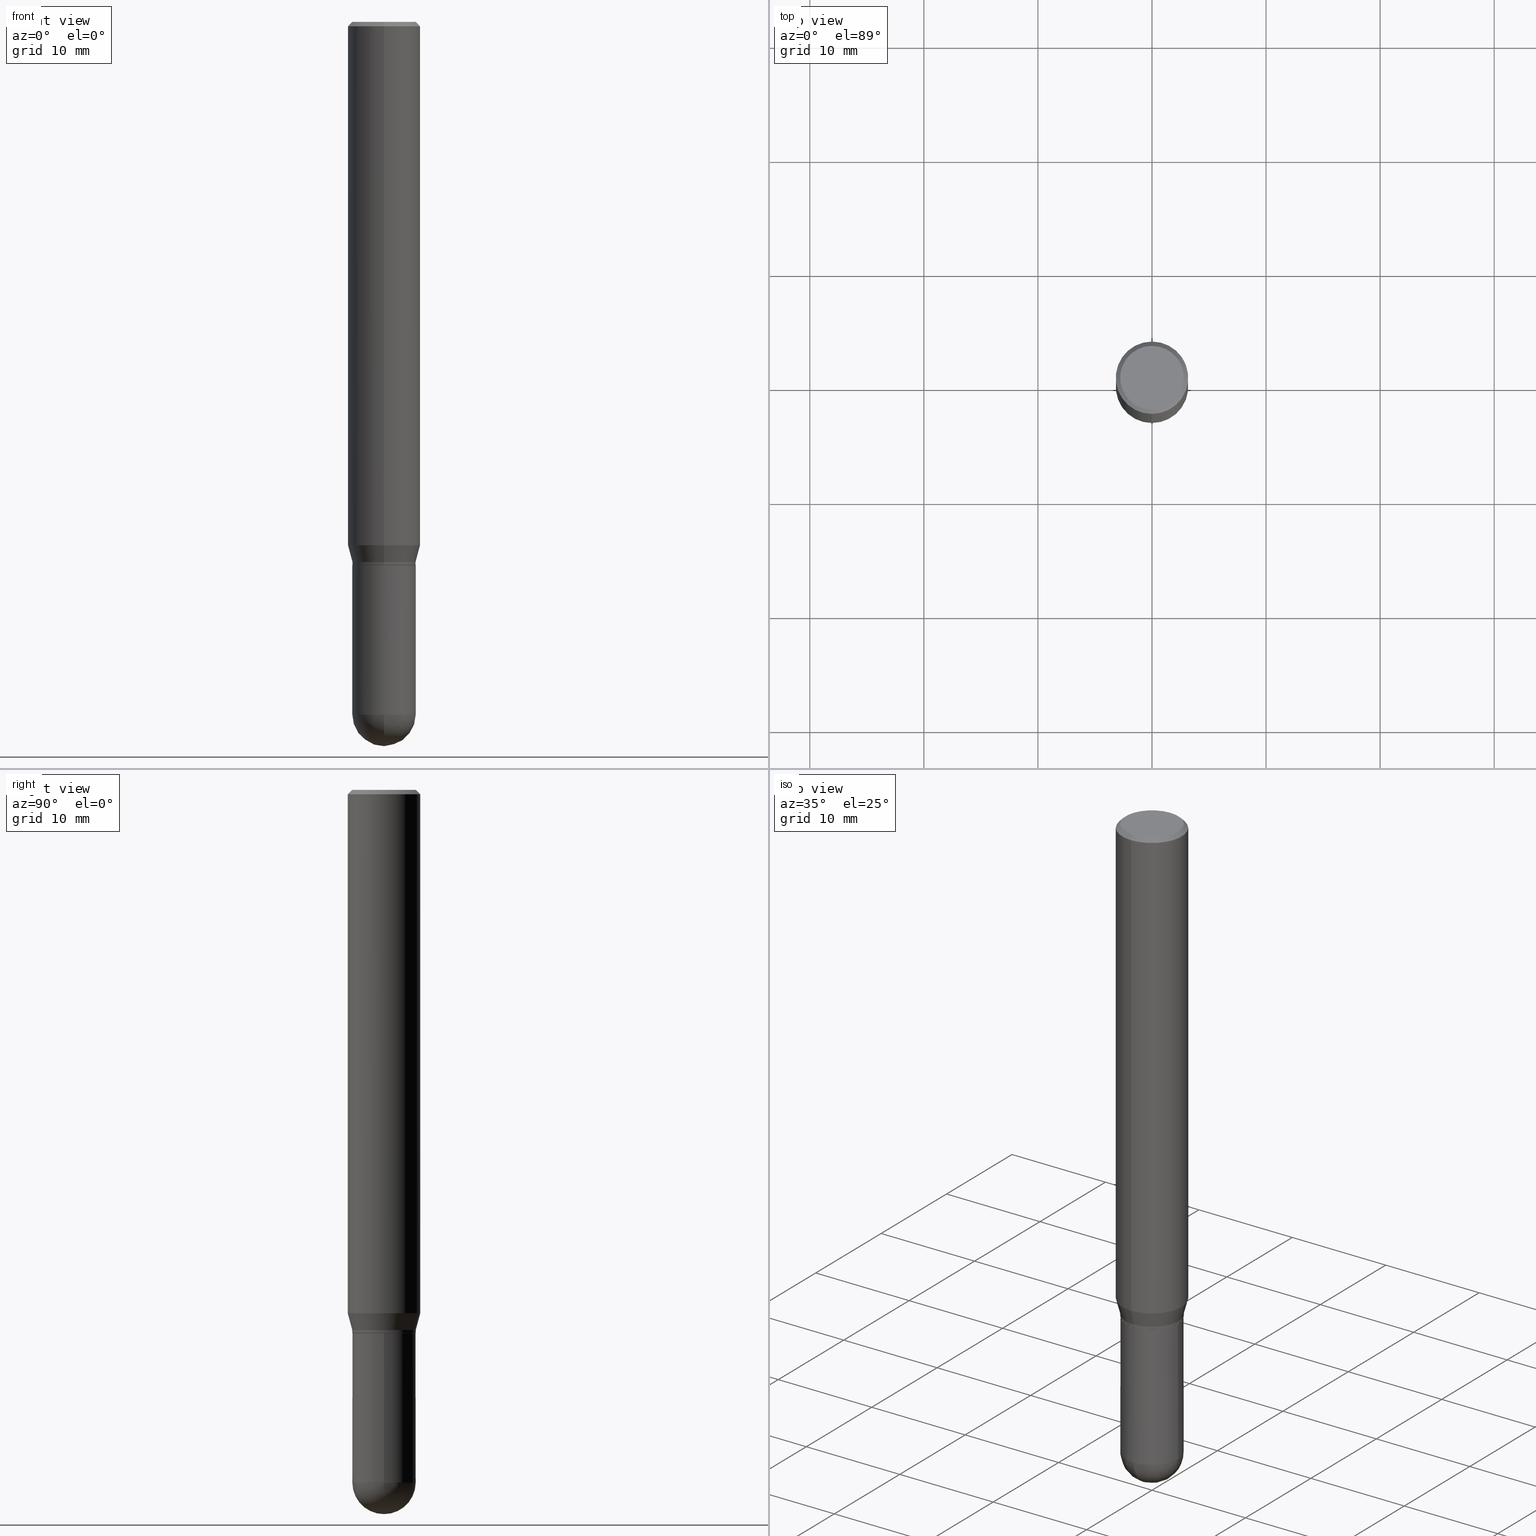
[diagram: canonical four-view strip — front | top / right | iso, engineering-drawing reading convention]
A machine part, canonical four-view strip (front | top / right | iso — engineering-drawing reading convention). The complete STEP part file that produces these views, byte-faithful:
ISO-10303-21;
HEADER;
FILE_DESCRIPTION (( 'STEP AP203' ),
    '1' );
FILE_NAME ('39528.STEP',
    '2024-03-08T12:52:33',
    ( '' ),
    ( '' ),
    'SwSTEP 2.0',
    'SolidWorks 2023',
    '' );
FILE_SCHEMA (( 'CONFIG_CONTROL_DESIGN' ));
ENDSEC;

DATA;
#1 = VECTOR ( 'NONE', #14, 39.37007874015748143 ) ;
#2 =( GEOMETRIC_REPRESENTATION_CONTEXT ( 3 ) GLOBAL_UNCERTAINTY_ASSIGNED_CONTEXT ( ( #114 ) ) GLOBAL_UNIT_ASSIGNED_CONTEXT ( ( #305, #193, #460 ) ) REPRESENTATION_CONTEXT ( 'NONE', 'WORKASPACE' ) );
#3 = DIRECTION ( 'NONE',  ( 1.000000000000000000, -6.982962677686269866E-15, 0.000000000000000000 ) ) ;
#4 = DIRECTION ( 'NONE',  ( -2.445484535067431049E-29, 3.491458814188467583E-15, 1.000000000000000000 ) ) ;
#5 = DIRECTION ( 'NONE',  ( 1.000000000000000000, -6.982962677686266711E-15, 4.876176775795935793E-29 ) ) ;
#6 = CIRCLE ( 'NONE', #500, 0.1093999999999999695 ) ;
#7 = PRODUCT_DEFINITION_FORMATION_WITH_SPECIFIED_SOURCE ( 'ANY', '', #340, .NOT_KNOWN. ) ;
#8 = DIRECTION ( 'NONE',  ( -2.445468806185136597E-29, 3.491481338843145583E-15, 1.000000000000000000 ) ) ;
#9 = CARTESIAN_POINT ( 'NONE',  ( 0.000000000000000000, 0.000000000000000000, 0.000000000000000000 ) ) ;
#10 = LINE ( 'NONE', #303, #449 ) ;
#11 = DIRECTION ( 'NONE',  ( -6.982962677686265922E-15, -1.000000000000000000, 2.497118824190370411E-15 ) ) ;
#12 = DATE_AND_TIME ( #138, #161 ) ;
#13 = EDGE_CURVE ( 'NONE', #119, #242, #272, .T. ) ;
#14 = DIRECTION ( 'NONE',  ( -2.445484535067430768E-29, 3.491458814188467188E-15, 1.000000000000000000 ) ) ;
#15 = VECTOR ( 'NONE', #170, 39.37007874015748143 ) ;
#16 = VECTOR ( 'NONE', #232, 39.37007874015748143 ) ;
#17 = AXIS2_PLACEMENT_3D ( 'NONE', #122, #444, #123 ) ;
#18 = LINE ( 'NONE', #456, #16 ) ;
#19 = CARTESIAN_POINT ( 'NONE',  ( 5.836782208862565620E-29, -8.360132924621096591E-15, -2.390600000000000058 ) ) ;
#20 = ORIENTED_EDGE ( 'NONE', *, *, #78, .F. ) ;
#21 = CALENDAR_DATE ( 2024, 8, 3 ) ;
#22 = CARTESIAN_POINT ( 'NONE',  ( -8.575622497214409523E-16, -0.1250000000000000555, -0.01499999999999956403 ) ) ;
#23 = ORIENTED_EDGE ( 'NONE', *, *, #275, .F. ) ;
#24 = EDGE_LOOP ( 'NONE', ( #301, #394 ) ) ;
#25 = DATE_AND_TIME ( #389, #207 ) ;
#26 = PERSON ( 'UNSPECIFIED', 'UNSPECIFIED', 'UNSPECIFIED', ('UNSPECIFIED'), ('UNSPECIFIED'), ('UNSPECIFIED') ) ;
#27 = CARTESIAN_POINT ( 'NONE',  ( 7.755573960821947898E-16, 0.1088999999999934604, -1.875000000000000444 ) ) ;
#28 = DIRECTION ( 'NONE',  ( -6.982962677686265922E-15, -1.000000000000000000, 3.483106191921935554E-15 ) ) ;
#29 = VERTEX_POINT ( 'NONE', #292 ) ;
#30 = APPROVAL_STATUS ( 'not_yet_approved' ) ;
#31 = CIRCLE ( 'NONE', #370, 0.1093999999999999972 ) ;
#32 = FACE_OUTER_BOUND ( 'NONE', #199, .T. ) ;
#33 = PLANE ( 'NONE',  #353 ) ;
#34 = ORIENTED_EDGE ( 'NONE', *, *, #510, .F. ) ;
#35 = EDGE_LOOP ( 'NONE', ( #117, #347, #512, #465 ) ) ;
#36 = CIRCLE ( 'NONE', #331, 0.1088999999999999968 ) ;
#37 = ADVANCED_FACE ( 'NONE', ( #367 ), #341, .T. ) ;
#38 = VERTEX_POINT ( 'NONE', #287 ) ;
#39 = CARTESIAN_POINT ( 'NONE',  ( 7.639361169389233258E-16, 0.1093999999999934608, -1.875000000000000444 ) ) ;
#40 = SHAPE_DEFINITION_REPRESENTATION ( #256, #409 ) ;
#41 = ADVANCED_FACE ( 'NONE', ( #328 ), #92, .T. ) ;
#42 = CARTESIAN_POINT ( 'NONE',  ( 8.327560863108821759E-16, 0.1093999999999934053, -1.865000000000000213 ) ) ;
#43 = ORIENTED_EDGE ( 'NONE', *, *, #438, .T. ) ;
#44 = EDGE_CURVE ( 'NONE', #470, #237, #181, .T. ) ;
#45 = DIRECTION ( 'NONE',  ( 6.982962677686265922E-15, 1.000000000000000000, -2.497118824190369227E-15 ) ) ;
#46 = CONICAL_SURFACE ( 'NONE', #343, 0.1250000000000000000, 0.7853981633974473908 ) ;
#47 = LINE ( 'NONE', #511, #150 ) ;
#48 = CARTESIAN_POINT ( 'NONE',  ( 4.585283503251433812E-29, -6.546485276603377605E-15, -1.875000000000000000 ) ) ;
#49 = DIRECTION ( 'NONE',  ( -6.982962677686265922E-15, -1.000000000000000000, 4.370956789862821150E-15 ) ) ;
#50 = DIRECTION ( 'NONE',  ( 1.000000000000000000, -6.982962677686265922E-15, 4.883557194083112340E-29 ) ) ;
#51 = CIRCLE ( 'NONE', #120, 0.1093999999999999972 ) ;
#52 = FACE_OUTER_BOUND ( 'NONE', #433, .T. ) ;
#53 = EDGE_CURVE ( 'NONE', #425, #470, #324, .T. ) ;
#54 = MECHANICAL_CONTEXT ( 'NONE', #200, 'mechanical' ) ;
#55 = FACE_OUTER_BOUND ( 'NONE', #210, .T. ) ;
#56 = PERSON_AND_ORGANIZATION ( #26, #288 ) ;
#57 = CC_DESIGN_APPROVAL ( #104, ( #121 ) ) ;
#58 = CARTESIAN_POINT ( 'NONE',  ( 8.881784197001690141E-16, 0.1249999999999936579, -1.806780007401925792 ) ) ;
#59 = EDGE_CURVE ( 'NONE', #508, #113, #47, .T. ) ;
#60 = DIRECTION ( 'NONE',  ( -2.445484535067431049E-29, 3.491458814188467583E-15, 1.000000000000000000 ) ) ;
#61 = LENGTH_MEASURE_WITH_UNIT ( LENGTH_MEASURE( 0.02539999999999999897 ), #87 );
#62 = CARTESIAN_POINT ( 'NONE',  ( 5.846137728066187200E-29, -8.346735288638422607E-15, -2.390600000000000058 ) ) ;
#63 = CARTESIAN_POINT ( 'NONE',  ( 3.668226802601146923E-31, -5.237188221282701522E-17, -0.01499999999999999944 ) ) ;
#64 = ORIENTED_EDGE ( 'NONE', *, *, #306, .T. ) ;
#65 = PERSON_AND_ORGANIZATION ( #26, #288 ) ;
#66 = CARTESIAN_POINT ( 'NONE',  ( 4.585283503251433812E-29, -6.546485276603377605E-15, -1.875000000000000000 ) ) ;
#67 = CARTESIAN_POINT ( 'NONE',  ( -7.604446355999884163E-16, -0.1089000000000065332, -1.874999999999999778 ) ) ;
#68 = ORIENTED_EDGE ( 'NONE', *, *, #13, .F. ) ;
#69 = ADVANCED_FACE ( 'NONE', ( #82 ), #332, .T. ) ;
#70 = ORIENTED_EDGE ( 'NONE', *, *, #91, .T. ) ;
#71 = ORIENTED_EDGE ( 'NONE', *, *, #245, .T. ) ;
#72 = EDGE_LOOP ( 'NONE', ( #112, #188, #20, #368 ) ) ;
#73 = AXIS2_PLACEMENT_3D ( 'NONE', #9, #195, #424 ) ;
#74 = CC_DESIGN_APPROVAL ( #431, ( #7 ) ) ;
#75 = EDGE_LOOP ( 'NONE', ( #238, #81, #320, #208 ) ) ;
#76 = CYLINDRICAL_SURFACE ( 'NONE', #376, 0.1250000000000000000 ) ;
#77 = VERTEX_POINT ( 'NONE', #42 ) ;
#78 = EDGE_CURVE ( 'NONE', #425, #154, #182, .T. ) ;
#79 = APPLICATION_CONTEXT ( 'configuration controlled 3d designs of mechanical parts and assemblies' ) ;
#80 = CARTESIAN_POINT ( 'NONE',  ( 4.584060760983900341E-29, -6.544739547196283432E-15, -1.874500000000000277 ) ) ;
#81 = ORIENTED_EDGE ( 'NONE', *, *, #317, .T. ) ;
#82 = FACE_OUTER_BOUND ( 'NONE', #264, .T. ) ;
#83 = AXIS2_PLACEMENT_3D ( 'NONE', #476, #483, #375 ) ;
#84 = AXIS2_PLACEMENT_3D ( 'NONE', #190, #60, #382 ) ;
#85 = APPROVAL_PERSON_ORGANIZATION ( #423, #431, #265 ) ;
#86 = DIRECTION ( 'NONE',  ( -6.982962677686265922E-15, -1.000000000000000000, 3.491458814188467188E-15 ) ) ;
#87 =( LENGTH_UNIT ( ) NAMED_UNIT ( * ) SI_UNIT ( $, .METRE. ) );
#88 = CARTESIAN_POINT ( 'NONE',  ( -8.728703347107391626E-16, -0.1250000000000063283, -1.806780007401924681 ) ) ;
#89 = LINE ( 'NONE', #381, #1 ) ;
#90 = SPHERICAL_SURFACE ( 'NONE', #227, 0.1093999999999999695 ) ;
#91 = EDGE_CURVE ( 'NONE', #321, #113, #204, .T. ) ;
#92 = CONICAL_SURFACE ( 'NONE', #286, 0.1088999999999999968, 0.7853981633974653764 ) ;
#93 = CIRCLE ( 'NONE', #362, 0.1093999999999999972 ) ;
#94 = SPHERICAL_SURFACE ( 'NONE', #458, 0.1093999999999999695 ) ;
#95 = MANIFOLD_SOLID_BREP ( 'Body-Move/Copy2[2]', #414 ) ;
#96 = DIRECTION ( 'NONE',  ( -2.445484535067431049E-29, 3.491458814188467583E-15, 1.000000000000000000 ) ) ;
#97 = APPROVAL_STATUS ( 'not_yet_approved' ) ;
#98 = DIRECTION ( 'NONE',  ( -2.445484535067431049E-29, 3.491458814188467583E-15, 1.000000000000000000 ) ) ;
#99 = CYLINDRICAL_SURFACE ( 'NONE', #475, 0.1093999999999999140 ) ;
#100 = EDGE_LOOP ( 'NONE', ( #429, #148, #454, #280 ) ) ;
#101 = ORIENTED_EDGE ( 'NONE', *, *, #109, .F. ) ;
#102 = COORDINATED_UNIVERSAL_TIME_OFFSET ( 5, 0, .BEHIND. ) ;
#103 = AXIS2_PLACEMENT_3D ( 'NONE', #239, #205, #439 ) ;
#104 = APPROVAL ( #189, 'UNSPECIFIED' ) ;
#105 = PERSON_AND_ORGANIZATION ( #26, #288 ) ;
#106 = CARTESIAN_POINT ( 'NONE',  ( 4.560828657900758226E-29, -6.511570688461491770E-15, -1.864999999999999991 ) ) ;
#107 = ORIENTED_EDGE ( 'NONE', *, *, #59, .F. ) ;
#108 = VERTEX_POINT ( 'NONE', #478 ) ;
#109 = EDGE_CURVE ( 'NONE', #113, #321, #315, .T. ) ;
#110 = CIRCLE ( 'NONE', #234, 0.1100000000000000283 ) ;
#111 = CARTESIAN_POINT ( 'NONE',  ( 0.000000000000000000, 0.000000000000000000, 0.000000000000000000 ) ) ;
#112 = ORIENTED_EDGE ( 'NONE', *, *, #427, .F. ) ;
#113 = VERTEX_POINT ( 'NONE', #88 ) ;
#114 = UNCERTAINTY_MEASURE_WITH_UNIT (LENGTH_MEASURE( 1.000000000000000082E-05 ), #305, 'distance_accuracy_value', 'NONE');
#115 = ORIENTED_EDGE ( 'NONE', *, *, #365, .T. ) ;
#116 = EDGE_CURVE ( 'NONE', #508, #77, #441, .T. ) ;
#117 = ORIENTED_EDGE ( 'NONE', *, *, #284, .F. ) ;
#118 = ORIENTED_EDGE ( 'NONE', *, *, #471, .T. ) ;
#119 = VERTEX_POINT ( 'NONE', #486 ) ;
#120 = AXIS2_PLACEMENT_3D ( 'NONE', #378, #386, #194 ) ;
#121 = SECURITY_CLASSIFICATION ( '', '', #134 ) ;
#122 = CARTESIAN_POINT ( 'NONE',  ( 4.585283503251433812E-29, -6.546485276603377605E-15, -1.875000000000000000 ) ) ;
#123 = DIRECTION ( 'NONE',  ( -6.982962677686265133E-15, -1.000000000000000000, 2.508584016220627649E-15 ) ) ;
#124 = DIRECTION ( 'NONE',  ( 1.000000000000000000, -6.982962677686269866E-15, 0.000000000000000000 ) ) ;
#125 = VECTOR ( 'NONE', #485, 39.37007874015748143 ) ;
#126 = AXIS2_PLACEMENT_3D ( 'NONE', #336, #294, #480 ) ;
#127 = DIRECTION ( 'NONE',  ( 1.000000000000000000, -6.982962677686269866E-15, 0.000000000000000000 ) ) ;
#128 = DIRECTION ( 'NONE',  ( -2.445484535067431049E-29, 3.491458814188467583E-15, 1.000000000000000000 ) ) ;
#129 = DIRECTION ( 'NONE',  ( -2.445468806185136597E-29, 3.491481338843145583E-15, 1.000000000000000000 ) ) ;
#130 = ADVANCED_FACE ( 'NONE', ( #283 ), #90, .T. ) ;
#131 = ORIENTED_EDGE ( 'NONE', *, *, #116, .F. ) ;
#132 = APPROVAL_DATE_TIME ( #12, #139 ) ;
#133 = LINE ( 'NONE', #22, #125 ) ;
#134 = SECURITY_CLASSIFICATION_LEVEL ( 'unclassified' ) ;
#135 = LINE ( 'NONE', #304, #184 ) ;
#136 = ORIENTED_EDGE ( 'NONE', *, *, #317, .F. ) ;
#137 = CALENDAR_DATE ( 2024, 8, 3 ) ;
#138 = CALENDAR_DATE ( 2024, 8, 3 ) ;
#139 = APPROVAL ( #30, 'UNSPECIFIED' ) ;
#140 = CONICAL_SURFACE ( 'NONE', #468, 0.1093999999999999140, 0.2617993877991502960 ) ;
#141 = DIRECTION ( 'NONE',  ( -2.445484535067431049E-29, 3.491458814188467583E-15, 1.000000000000000000 ) ) ;
#142 = ORIENTED_EDGE ( 'NONE', *, *, #91, .F. ) ;
#143 = PERSON_AND_ORGANIZATION_ROLE ( 'creator' ) ;
#144 = DIRECTION ( 'NONE',  ( -1.000000000000000000, 6.982962677686265922E-15, -4.876176775795935793E-29 ) ) ;
#145 = EDGE_LOOP ( 'NONE', ( #71, #474 ) ) ;
#146 = EDGE_CURVE ( 'NONE', #119, #451, #505, .T. ) ;
#147 = CARTESIAN_POINT ( 'NONE',  ( -0.1093999999999999972, -6.669297646563111468E-15, -1.875000000000000000 ) ) ;
#148 = ORIENTED_EDGE ( 'NONE', *, *, #380, .T. ) ;
#149 = EDGE_LOOP ( 'NONE', ( #364, #405, #101, #107 ) ) ;
#150 = VECTOR ( 'NONE', #250, 39.37007874015748143 ) ;
#151 = AXIS2_PLACEMENT_3D ( 'NONE', #186, #96, #230 ) ;
#152 = DIRECTION ( 'NONE',  ( -2.445468806185136597E-29, 3.491481338843145583E-15, 1.000000000000000000 ) ) ;
#153 = ORIENTED_EDGE ( 'NONE', *, *, #173, .F. ) ;
#154 = VERTEX_POINT ( 'NONE', #211 ) ;
#155 = EDGE_LOOP ( 'NONE', ( #432, #472, #131, #153 ) ) ;
#156 = VERTEX_POINT ( 'NONE', #165 ) ;
#157 = EDGE_CURVE ( 'NONE', #243, #276, #206, .T. ) ;
#158 = PLANE ( 'NONE',  #481 ) ;
#159 = DIRECTION ( 'NONE',  ( -6.982962677686265922E-15, -1.000000000000000000, 2.497118824190370411E-15 ) ) ;
#160 = AXIS2_PLACEMENT_3D ( 'NONE', #80, #4, #329 ) ;
#161 = LOCAL_TIME ( 7, 52, 33.00000000000000000, #269 ) ;
#162 = EDGE_LOOP ( 'NONE', ( #118, #361, #244, #506, #396 ) ) ;
#163 = FACE_OUTER_BOUND ( 'NONE', #75, .T. ) ;
#164 = DIRECTION ( 'NONE',  ( 2.438088387897960049E-29, -3.491481338843145188E-15, -1.000000000000000000 ) ) ;
#165 = CARTESIAN_POINT ( 'NONE',  ( 8.881784197001696058E-16, 0.1249999999999999584, -0.01500000000000043486 ) ) ;
#166 = DIRECTION ( 'NONE',  ( -2.445484535067430768E-29, 3.491458814188467188E-15, 1.000000000000000000 ) ) ;
#167 = EDGE_CURVE ( 'NONE', #242, #282, #196, .T. ) ;
#168 = DIRECTION ( 'NONE',  ( -2.445468806185136597E-29, 3.491481338843145583E-15, 1.000000000000000000 ) ) ;
#169 = DIRECTION ( 'NONE',  ( -2.445468806185136597E-29, 3.491481338843145583E-15, 1.000000000000000000 ) ) ;
#170 = DIRECTION ( 'NONE',  ( -2.445468806185136877E-29, 3.491481338843145188E-15, 1.000000000000000000 ) ) ;
#171 = VECTOR ( 'NONE', #338, 39.37007874015748143 ) ;
#172 = LOCAL_TIME ( 7, 52, 33.00000000000000000, #102 ) ;
#173 = EDGE_CURVE ( 'NONE', #242, #508, #214, .T. ) ;
#174 = CARTESIAN_POINT ( 'NONE',  ( -0.1093999999999999972, 7.773337529215495838E-16, -5.381314988738867416E-30 ) ) ;
#175 = FACE_OUTER_BOUND ( 'NONE', #145, .T. ) ;
#176 = FACE_OUTER_BOUND ( 'NONE', #149, .T. ) ;
#177 = COORDINATED_UNIVERSAL_TIME_OFFSET ( 5, 0, .BEHIND. ) ;
#178 = FACE_OUTER_BOUND ( 'NONE', #469, .T. ) ;
#179 = CARTESIAN_POINT ( 'NONE',  ( 7.773337529215944502E-16, 0.1093999999999934053, -1.865000000000000213 ) ) ;
#180 = ORIENTED_EDGE ( 'NONE', *, *, #499, .F. ) ;
#181 = CIRCLE ( 'NONE', #360, 0.1093999999999999972 ) ;
#182 = CIRCLE ( 'NONE', #417, 0.1093999999999999972 ) ;
#183 = PERSON_AND_ORGANIZATION ( #26, #288 ) ;
#184 = VECTOR ( 'NONE', #420, 39.37007874015748143 ) ;
#185 = APPROVAL_PERSON_ORGANIZATION ( #231, #104, #339 ) ;
#186 = CARTESIAN_POINT ( 'NONE',  ( 3.668226802601146923E-31, -5.237188221282701522E-17, -0.01499999999999999944 ) ) ;
#187 = ORIENTED_EDGE ( 'NONE', *, *, #146, .F. ) ;
#188 = ORIENTED_EDGE ( 'NONE', *, *, #407, .T. ) ;
#189 = APPROVAL_STATUS ( 'not_yet_approved' ) ;
#190 = CARTESIAN_POINT ( 'NONE',  ( 4.560828657900758226E-29, -6.511570688461491770E-15, -1.864999999999999991 ) ) ;
#191 = FACE_OUTER_BOUND ( 'NONE', #162, .T. ) ;
#192 = DESIGN_CONTEXT ( 'detailed design', #79, 'design' ) ;
#193 =( NAMED_UNIT ( * ) PLANE_ANGLE_UNIT ( ) SI_UNIT ( $, .RADIAN. ) );
#194 = DIRECTION ( 'NONE',  ( 1.000000000000000000, -6.982962677686269866E-15, 0.000000000000000000 ) ) ;
#195 = DIRECTION ( 'NONE',  ( -2.445468806185136597E-29, 3.491481338843145583E-15, 1.000000000000000000 ) ) ;
#196 = CIRCLE ( 'NONE', #160, 0.1093999999999999140 ) ;
#197 = EDGE_CURVE ( 'NONE', #237, #470, #93, .T. ) ;
#198 = CARTESIAN_POINT ( 'NONE',  ( 4.585283503251433812E-29, -6.546485276603377605E-15, -1.875000000000000000 ) ) ;
#199 = EDGE_LOOP ( 'NONE', ( #187, #358 ) ) ;
#200 = APPLICATION_CONTEXT ( 'configuration controlled 3d designs of mechanical parts and assemblies' ) ;
#201 = CC_DESIGN_PERSON_AND_ORGANIZATION_ASSIGNMENT ( #183, #455, ( #340 ) ) ;
#202 = ORIENTED_EDGE ( 'NONE', *, *, #78, .T. ) ;
#203 = EDGE_LOOP ( 'NONE', ( #395, #64, #270, #142 ) ) ;
#204 = CIRCLE ( 'NONE', #466, 0.1250000000000000000 ) ;
#205 = DIRECTION ( 'NONE',  ( -2.445484535067431049E-29, 3.491458814188467583E-15, 1.000000000000000000 ) ) ;
#206 = CIRCLE ( 'NONE', #401, 0.1100000000000000283 ) ;
#207 = LOCAL_TIME ( 7, 52, 33.00000000000000000, #348 ) ;
#208 = ORIENTED_EDGE ( 'NONE', *, *, #413, .F. ) ;
#209 = ADVANCED_FACE ( 'NONE', ( #176 ), #247, .T. ) ;
#210 = EDGE_LOOP ( 'NONE', ( #136, #70, #436, #23 ) ) ;
#211 = CARTESIAN_POINT ( 'NONE',  ( -7.773337529214909122E-16, -0.1094000000000083378, -2.390599999999999614 ) ) ;
#212 = EDGE_CURVE ( 'NONE', #451, #282, #18, .T. ) ;
#213 = VECTOR ( 'NONE', #411, 39.37007874015748143 ) ;
#214 = LINE ( 'NONE', #371, #467 ) ;
#215 = AXIS2_PLACEMENT_3D ( 'NONE', #311, #98, #235 ) ;
#216 = CARTESIAN_POINT ( 'NONE',  ( 5.846137728066187200E-29, -8.346735288638422607E-15, -2.390600000000000058 ) ) ;
#217 = DIRECTION ( 'NONE',  ( -6.982962677686265133E-15, -1.000000000000000000, 2.508584016220627649E-15 ) ) ;
#218 = CARTESIAN_POINT ( 'NONE',  ( 5.846137728066187200E-29, -8.346735288638422607E-15, -2.390600000000000058 ) ) ;
#219 = ADVANCED_FACE ( 'NONE', ( #261 ), #158, .F. ) ;
#220 = CARTESIAN_POINT ( 'NONE',  ( 4.560828657900758226E-29, -6.511570688461491770E-15, -1.864999999999999991 ) ) ;
#221 = DIRECTION ( 'NONE',  ( 6.982962677686265133E-15, 1.000000000000000000, 0.000000000000000000 ) ) ;
#222 = DIRECTION ( 'NONE',  ( -2.445484535067431049E-29, 3.491458814188467583E-15, 1.000000000000000000 ) ) ;
#223 = CARTESIAN_POINT ( 'NONE',  ( -7.639361169388312262E-16, -0.1094000000000064227, -1.864999999999999547 ) ) ;
#224 = DIRECTION ( 'NONE',  ( -7.105427357601000281E-15, -1.000000000000000000, 0.000000000000000000 ) ) ;
#225 = CARTESIAN_POINT ( 'NONE',  ( 0.000000000000000000, 0.000000000000000000, 0.000000000000000000 ) ) ;
#226 = AXIS2_PLACEMENT_3D ( 'NONE', #220, #334, #159 ) ;
#227 = AXIS2_PLACEMENT_3D ( 'NONE', #410, #246, #45 ) ;
#228 = VERTEX_POINT ( 'NONE', #372 ) ;
#229 = PERSON_AND_ORGANIZATION_ROLE ( 'creator' ) ;
#230 = DIRECTION ( 'NONE',  ( -6.982962677686265922E-15, -1.000000000000000000, 3.483106191921935554E-15 ) ) ;
#231 = PERSON_AND_ORGANIZATION ( #26, #288 ) ;
#232 = DIRECTION ( 'NONE',  ( 5.024295867788147587E-15, 0.7071067811865620056, 0.7071067811865330288 ) ) ;
#233 = DIRECTION ( 'NONE',  ( 0.000000000000000000, 0.000000000000000000, 1.000000000000000000 ) ) ;
#234 = AXIS2_PLACEMENT_3D ( 'NONE', #335, #293, #387 ) ;
#235 = DIRECTION ( 'NONE',  ( -6.982962677686265133E-15, -1.000000000000000000, 2.508584016220627649E-15 ) ) ;
#236 = FACE_OUTER_BOUND ( 'NONE', #100, .T. ) ;
#237 = VERTEX_POINT ( 'NONE', #312 ) ;
#238 = ORIENTED_EDGE ( 'NONE', *, *, #109, .T. ) ;
#239 = CARTESIAN_POINT ( 'NONE',  ( 4.584060760983900341E-29, -6.544739547196283432E-15, -1.874500000000000277 ) ) ;
#240 = EDGE_CURVE ( 'NONE', #77, #321, #462, .T. ) ;
#241 = CIRCLE ( 'NONE', #307, 0.1093999999999999695 ) ;
#242 = VERTEX_POINT ( 'NONE', #262 ) ;
#243 = VERTEX_POINT ( 'NONE', #300 ) ;
#244 = ORIENTED_EDGE ( 'NONE', *, *, #197, .F. ) ;
#245 = EDGE_CURVE ( 'NONE', #276, #243, #110, .T. ) ;
#246 = DIRECTION ( 'NONE',  ( -1.000000000000000000, 6.982962677686265922E-15, -4.883557194083112340E-29 ) ) ;
#247 = CONICAL_SURFACE ( 'NONE', #84, 0.1093999999999999140, 0.2617993877991502960 ) ;
#248 = CARTESIAN_POINT ( 'NONE',  ( 4.585254011597131119E-29, -6.546527510330898707E-15, -1.875000000000000000 ) ) ;
#249 = CARTESIAN_POINT ( 'NONE',  ( 0.000000000000000000, 0.000000000000000000, 0.000000000000000000 ) ) ;
#250 = DIRECTION ( 'NONE',  ( -1.807323732225330139E-15, -0.2588190451025181860, 0.9659258262890689783 ) ) ;
#251 = CYLINDRICAL_SURFACE ( 'NONE', #434, 0.1093999999999999140 ) ;
#252 = DIRECTION ( 'NONE',  ( 1.839019923739600315E-15, 0.2588190451025249583, 0.9659258262890670910 ) ) ;
#253 = CIRCLE ( 'NONE', #392, 0.1093999999999999140 ) ;
#254 = CARTESIAN_POINT ( 'NONE',  ( 5.836782208862565620E-29, -8.360132924621096591E-15, -2.390600000000000058 ) ) ;
#255 = DIRECTION ( 'NONE',  ( -1.000000000000000000, 6.982962677686265922E-15, -4.883557194083112340E-29 ) ) ;
#256 = PRODUCT_DEFINITION_SHAPE ( 'NONE', 'NONE',  #501 ) ;
#257 = DATE_AND_TIME ( #21, #415 ) ;
#258 = EDGE_CURVE ( 'NONE', #276, #156, #346, .T. ) ;
#259 = CALENDAR_DATE ( 2024, 8, 3 ) ;
#260 = CARTESIAN_POINT ( 'NONE',  ( 7.773337529215488935E-16, 0.1093999999999999140, -3.819655942722180079E-16 ) ) ;
#261 = FACE_OUTER_BOUND ( 'NONE', #24, .T. ) ;
#262 = CARTESIAN_POINT ( 'NONE',  ( -7.639361169388317193E-16, -0.1094000000000065614, -1.874499999999999833 ) ) ;
#263 = CIRCLE ( 'NONE', #419, 0.1250000000000000000 ) ;
#264 = EDGE_LOOP ( 'NONE', ( #464, #202, #43, #391, #397 ) ) ;
#265 = APPROVAL_ROLE ( '' ) ;
#266 = AXIS2_PLACEMENT_3D ( 'NONE', #302, #233, #308 ) ;
#267 = DIRECTION ( 'NONE',  ( -2.445484535067431049E-29, 3.491458814188467188E-15, 1.000000000000000000 ) ) ;
#268 = ORIENTED_EDGE ( 'NONE', *, *, #427, .T. ) ;
#269 = COORDINATED_UNIVERSAL_TIME_OFFSET ( 5, 0, .BEHIND. ) ;
#270 = ORIENTED_EDGE ( 'NONE', *, *, #59, .T. ) ;
#271 = COORDINATED_UNIVERSAL_TIME_OFFSET ( 5, 0, .BEHIND. ) ;
#272 = LINE ( 'NONE', #67, #213 ) ;
#273 = ORIENTED_EDGE ( 'NONE', *, *, #146, .T. ) ;
#274 = AXIS2_PLACEMENT_3D ( 'NONE', #216, #168, #127 ) ;
#275 = EDGE_CURVE ( 'NONE', #156, #228, #383, .T. ) ;
#276 = VERTEX_POINT ( 'NONE', #453 ) ;
#277 = CC_DESIGN_DATE_AND_TIME_ASSIGNMENT ( #352, #493, ( #501 ) ) ;
#278 = ORIENTED_EDGE ( 'NONE', *, *, #407, .F. ) ;
#279 = LOCAL_TIME ( 7, 52, 33.00000000000000000, #271 ) ;
#280 = ORIENTED_EDGE ( 'NONE', *, *, #492, .F. ) ;
#281 = ADVANCED_FACE ( 'NONE', ( #55 ), #297, .T. ) ;
#282 = VERTEX_POINT ( 'NONE', #450 ) ;
#283 = FACE_OUTER_BOUND ( 'NONE', #72, .T. ) ;
#284 = EDGE_CURVE ( 'NONE', #243, #228, #133, .T. ) ;
#285 = DIRECTION ( 'NONE',  ( -2.445484535067430768E-29, 3.491458814188467188E-15, 1.000000000000000000 ) ) ;
#286 = AXIS2_PLACEMENT_3D ( 'NONE', #48, #377, #217 ) ;
#287 = CARTESIAN_POINT ( 'NONE',  ( 6.108994255861030141E-29, -8.735402165099200357E-15, -2.500000000000000000 ) ) ;
#288 = ORGANIZATION ( 'UNSPECIFIED', 'UNSPECIFIED', '' ) ;
#289 = DIRECTION ( 'NONE',  ( 2.445484535067431049E-29, -3.491458814188467583E-15, -1.000000000000000000 ) ) ;
#290 = DIRECTION ( 'NONE',  ( -2.445468806185136877E-29, 3.491481338843145188E-15, 1.000000000000000000 ) ) ;
#291 = DIRECTION ( 'NONE',  ( 6.982962677686265922E-15, 1.000000000000000000, -2.497118824190369227E-15 ) ) ;
#292 = CARTESIAN_POINT ( 'NONE',  ( 0.1093999999999999972, -8.210567516423539018E-15, -2.390600000000000058 ) ) ;
#293 = DIRECTION ( 'NONE',  ( -2.445484535067431049E-29, 3.491458814188467583E-15, 1.000000000000000000 ) ) ;
#294 = DIRECTION ( 'NONE',  ( 2.445484535067431049E-29, -3.491458814188467188E-15, -1.000000000000000000 ) ) ;
#295 = CLOSED_SHELL ( 'NONE', ( #337, #130, #219, #298, #69 ) ) ;
#296 = DIRECTION ( 'NONE',  ( -1.000000000000000000, 7.105427357601001070E-15, -4.926315508542082329E-29 ) ) ;
#297 = CYLINDRICAL_SURFACE ( 'NONE', #442, 0.1250000000000000000 ) ;
#298 = ADVANCED_FACE ( 'NONE', ( #52 ), #94, .T. ) ;
#299 = DIRECTION ( 'NONE',  ( -2.445484535067431049E-29, 3.491458814188467583E-15, 1.000000000000000000 ) ) ;
#300 = CARTESIAN_POINT ( 'NONE',  ( -8.061085147381547495E-16, -0.1100000000000000283, 3.838978928193412689E-16 ) ) ;
#301 = ORIENTED_EDGE ( 'NONE', *, *, #197, .T. ) ;
#302 = CARTESIAN_POINT ( 'NONE',  ( 0.000000000000000000, 0.000000000000000000, 0.000000000000000000 ) ) ;
#303 = CARTESIAN_POINT ( 'NONE',  ( 0.1093999999999999972, -7.639361169388775718E-16, 5.334537392720753909E-30 ) ) ;
#304 = CARTESIAN_POINT ( 'NONE',  ( 8.881784197001251337E-16, 0.1250000000000000000, -4.364323517735584479E-16 ) ) ;
#305 =( CONVERSION_BASED_UNIT ( 'INCH', #61 ) LENGTH_UNIT ( ) NAMED_UNIT ( #326 ) );
#306 = EDGE_CURVE ( 'NONE', #77, #508, #253, .T. ) ;
#307 = AXIS2_PLACEMENT_3D ( 'NONE', #254, #296, #224 ) ;
#308 = DIRECTION ( 'NONE',  ( 1.000000000000000000, 0.000000000000000000, 0.000000000000000000 ) ) ;
#309 = VECTOR ( 'NONE', #166, 39.37007874015748143 ) ;
#310 = PERSON_AND_ORGANIZATION ( #26, #288 ) ;
#311 = CARTESIAN_POINT ( 'NONE',  ( 4.585283503251433812E-29, -6.546485276603377605E-15, -1.875000000000000000 ) ) ;
#312 = CARTESIAN_POINT ( 'NONE',  ( 0.1093999999999999972, -7.310463627269777068E-15, -1.875000000000000000 ) ) ;
#313 = DIRECTION ( 'NONE',  ( 1.000000000000000000, -6.982962677686269866E-15, 0.000000000000000000 ) ) ;
#314 = ORIENTED_EDGE ( 'NONE', *, *, #284, .T. ) ;
#315 = CIRCLE ( 'NONE', #83, 0.1250000000000000000 ) ;
#316 = ORIENTED_EDGE ( 'NONE', *, *, #492, .T. ) ;
#317 = EDGE_CURVE ( 'NONE', #321, #156, #135, .T. ) ;
#318 = VECTOR ( 'NONE', #252, 39.37007874015748143 ) ;
#319 = ORIENTED_EDGE ( 'NONE', *, *, #306, .F. ) ;
#320 = ORIENTED_EDGE ( 'NONE', *, *, #365, .F. ) ;
#321 = VERTEX_POINT ( 'NONE', #58 ) ;
#322 = CARTESIAN_POINT ( 'NONE',  ( 0.000000000000000000, 0.000000000000000000, 0.000000000000000000 ) ) ;
#323 = AXIS2_PLACEMENT_3D ( 'NONE', #408, #289, #440 ) ;
#324 = LINE ( 'NONE', #174, #15 ) ;
#325 = CC_DESIGN_PERSON_AND_ORGANIZATION_ASSIGNMENT ( #65, #487, ( #7 ) ) ;
#326 = DIMENSIONAL_EXPONENTS ( 1.000000000000000000, 0.000000000000000000, 0.000000000000000000, 0.000000000000000000, 0.000000000000000000, 0.000000000000000000, 0.000000000000000000 ) ;
#327 = DIRECTION ( 'NONE',  ( -2.445484535067431049E-29, 3.491458814188467583E-15, 1.000000000000000000 ) ) ;
#328 = FACE_OUTER_BOUND ( 'NONE', #388, .T. ) ;
#329 = DIRECTION ( 'NONE',  ( -6.982962677686265922E-15, -1.000000000000000000, 2.497118824190370411E-15 ) ) ;
#330 = PLANE ( 'NONE',  #126 ) ;
#331 = AXIS2_PLACEMENT_3D ( 'NONE', #66, #497, #459 ) ;
#332 = CYLINDRICAL_SURFACE ( 'NONE', #488, 0.1093999999999999972 ) ;
#333 = CC_DESIGN_DATE_AND_TIME_ASSIGNMENT ( #422, #426, ( #121 ) ) ;
#334 = DIRECTION ( 'NONE',  ( -2.445484535067431049E-29, 3.491458814188467583E-15, 1.000000000000000000 ) ) ;
#335 = CARTESIAN_POINT ( 'NONE',  ( 3.975789068314252337E-48, -5.676299967089012762E-34, -1.625767413902138821E-19 ) ) ;
#336 = CARTESIAN_POINT ( 'NONE',  ( 7.681258945454894762E-16, 0.1100000000000000283, -3.841417579314265946E-16 ) ) ;
#337 = ADVANCED_FACE ( 'NONE', ( #191 ), #447, .T. ) ;
#338 = DIRECTION ( 'NONE',  ( 4.937700262164543309E-15, 0.7071067811865444641, -0.7071067811865505703 ) ) ;
#339 = APPROVAL_ROLE ( '' ) ;
#340 = PRODUCT ( '39528', '39528', '', ( #54 ) ) ;
#341 = CONICAL_SURFACE ( 'NONE', #323, 0.1250000000000000000, 0.7853981633974473908 ) ;
#342 = CC_DESIGN_PERSON_AND_ORGANIZATION_ASSIGNMENT ( #56, #461, ( #121 ) ) ;
#343 = AXIS2_PLACEMENT_3D ( 'NONE', #369, #366, #509 ) ;
#344 = CC_DESIGN_SECURITY_CLASSIFICATION ( #121, ( #7 ) ) ;
#345 = APPLICATION_PROTOCOL_DEFINITION ( 'international standard', 'config_control_design', 1994, #79 ) ;
#346 = LINE ( 'NONE', #491, #171 ) ;
#347 = ORIENTED_EDGE ( 'NONE', *, *, #245, .F. ) ;
#348 = COORDINATED_UNIVERSAL_TIME_OFFSET ( 5, 0, .BEHIND. ) ;
#349 = DIRECTION ( 'NONE',  ( -6.982962677686265922E-15, -1.000000000000000000, 2.497118824190370411E-15 ) ) ;
#350 = FACE_OUTER_BOUND ( 'NONE', #403, .T. ) ;
#351 = DIRECTION ( 'NONE',  ( -2.445484535067431049E-29, 3.491458814188467583E-15, 1.000000000000000000 ) ) ;
#352 = DATE_AND_TIME ( #137, #172 ) ;
#353 = AXIS2_PLACEMENT_3D ( 'NONE', #198, #267, #357 ) ;
#354 = APPROVAL_DATE_TIME ( #257, #431 ) ;
#355 = FACE_OUTER_BOUND ( 'NONE', #203, .T. ) ;
#356 = DIRECTION ( 'NONE',  ( -6.982962677686265922E-15, -1.000000000000000000, 3.491458814188467188E-15 ) ) ;
#357 = DIRECTION ( 'NONE',  ( -6.982962677686265922E-15, -1.000000000000000000, 3.491458814188467188E-15 ) ) ;
#358 = ORIENTED_EDGE ( 'NONE', *, *, #380, .F. ) ;
#359 = PRODUCT_RELATED_PRODUCT_CATEGORY ( 'detail', '', ( #340 ) ) ;
#360 = AXIS2_PLACEMENT_3D ( 'NONE', #404, #129, #3 ) ;
#361 = ORIENTED_EDGE ( 'NONE', *, *, #53, .T. ) ;
#362 = AXIS2_PLACEMENT_3D ( 'NONE', #248, #169, #124 ) ;
#363 = LINE ( 'NONE', #260, #309 ) ;
#364 = ORIENTED_EDGE ( 'NONE', *, *, #116, .T. ) ;
#365 = EDGE_CURVE ( 'NONE', #228, #156, #263, .T. ) ;
#366 = DIRECTION ( 'NONE',  ( 2.445484535067431049E-29, -3.491458814188467583E-15, -1.000000000000000000 ) ) ;
#367 = FACE_OUTER_BOUND ( 'NONE', #35, .T. ) ;
#368 = ORIENTED_EDGE ( 'NONE', *, *, #471, .F. ) ;
#369 = CARTESIAN_POINT ( 'NONE',  ( 3.668226802601146923E-31, -5.237188221282701522E-17, -0.01499999999999999944 ) ) ;
#370 = AXIS2_PLACEMENT_3D ( 'NONE', #62, #152, #313 ) ;
#371 = CARTESIAN_POINT ( 'NONE',  ( -7.639361169388768816E-16, -0.1093999999999999140, 3.819655942722180079E-16 ) ) ;
#372 = CARTESIAN_POINT ( 'NONE',  ( -8.728703347107828458E-16, -0.1250000000000000555, -0.01499999999999956403 ) ) ;
#373 = DIRECTION ( 'NONE',  ( 1.000000000000000000, -6.982962677686269866E-15, 0.000000000000000000 ) ) ;
#374 = ADVANCED_FACE ( 'NONE', ( #32 ), #33, .F. ) ;
#375 = DIRECTION ( 'NONE',  ( -6.982962677686265922E-15, -1.000000000000000000, 4.370956789862821150E-15 ) ) ;
#376 = AXIS2_PLACEMENT_3D ( 'NONE', #322, #327, #484 ) ;
#377 = DIRECTION ( 'NONE',  ( -2.445484535067431049E-29, 3.491458814188467583E-15, 1.000000000000000000 ) ) ;
#378 = CARTESIAN_POINT ( 'NONE',  ( 5.846137728066187200E-29, -8.346735288638422607E-15, -2.390600000000000058 ) ) ;
#379 = DIRECTION ( 'NONE',  ( -6.982962677686265922E-15, -1.000000000000000000, 3.491458814188467583E-15 ) ) ;
#380 = EDGE_CURVE ( 'NONE', #451, #119, #36, .T. ) ;
#381 = CARTESIAN_POINT ( 'NONE',  ( -8.728703347107832402E-16, -0.1250000000000000000, 4.364323517735584479E-16 ) ) ;
#382 = DIRECTION ( 'NONE',  ( -6.982962677686265922E-15, -1.000000000000000000, 2.497118824190370411E-15 ) ) ;
#383 = CIRCLE ( 'NONE', #151, 0.1250000000000000000 ) ;
#384 = CARTESIAN_POINT ( 'NONE',  ( 5.836782208862565620E-29, -8.360132924621096591E-15, -2.390600000000000058 ) ) ;
#385 = PERSON_AND_ORGANIZATION ( #26, #288 ) ;
#386 = DIRECTION ( 'NONE',  ( -2.445468806185136597E-29, 3.491481338843145583E-15, 1.000000000000000000 ) ) ;
#387 = DIRECTION ( 'NONE',  ( -6.982962677686265922E-15, -1.000000000000000000, 3.491458814188467188E-15 ) ) ;
#388 = EDGE_LOOP ( 'NONE', ( #273, #502, #400, #68 ) ) ;
#389 = CALENDAR_DATE ( 2024, 8, 3 ) ;
#390 = APPLICATION_PROTOCOL_DEFINITION ( 'international standard', 'config_control_design', 1994, #200 ) ;
#391 = ORIENTED_EDGE ( 'NONE', *, *, #399, .T. ) ;
#392 = AXIS2_PLACEMENT_3D ( 'NONE', #494, #448, #11 ) ;
#393 = ADVANCED_FACE ( 'NONE', ( #163 ), #76, .T. ) ;
#394 = ORIENTED_EDGE ( 'NONE', *, *, #44, .T. ) ;
#395 = ORIENTED_EDGE ( 'NONE', *, *, #240, .F. ) ;
#396 = ORIENTED_EDGE ( 'NONE', *, *, #510, .T. ) ;
#397 = ORIENTED_EDGE ( 'NONE', *, *, #44, .F. ) ;
#398 = ORIENTED_EDGE ( 'NONE', *, *, #258, .F. ) ;
#399 = EDGE_CURVE ( 'NONE', #29, #237, #10, .T. ) ;
#400 = ORIENTED_EDGE ( 'NONE', *, *, #167, .F. ) ;
#401 = AXIS2_PLACEMENT_3D ( 'NONE', #406, #437, #86 ) ;
#402 = APPROVAL_PERSON_ORGANIZATION ( #310, #139, #495 ) ;
#403 = EDGE_LOOP ( 'NONE', ( #504, #314, #115, #398 ) ) ;
#404 = CARTESIAN_POINT ( 'NONE',  ( 4.585254011597131119E-29, -6.546527510330898707E-15, -1.875000000000000000 ) ) ;
#405 = ORIENTED_EDGE ( 'NONE', *, *, #240, .T. ) ;
#406 = CARTESIAN_POINT ( 'NONE',  ( 3.975789068314252337E-48, -5.676299967089012762E-34, -1.625767413902138821E-19 ) ) ;
#407 = EDGE_CURVE ( 'NONE', #38, #154, #241, .T. ) ;
#408 = CARTESIAN_POINT ( 'NONE',  ( 3.668226802601146923E-31, -5.237188221282701522E-17, -0.01499999999999999944 ) ) ;
#409 = ADVANCED_BREP_SHAPE_REPRESENTATION ( '39528', ( #435, #95, #266 ), #2 ) ;
#410 = CARTESIAN_POINT ( 'NONE',  ( 5.836782208862565620E-29, -8.360132924621096591E-15, -2.390600000000000058 ) ) ;
#411 = DIRECTION ( 'NONE',  ( -4.937700262164631661E-15, -0.7071067811865571207, 0.7071067811865379138 ) ) ;
#412 = CARTESIAN_POINT ( 'NONE',  ( -0.1093999999999999972, -6.669297646563111468E-15, -2.390600000000000058 ) ) ;
#413 = EDGE_CURVE ( 'NONE', #113, #228, #89, .T. ) ;
#414 = CLOSED_SHELL ( 'NONE', ( #446, #41, #482, #393, #209, #496, #281, #37, #507, #374, #477, #418 ) ) ;
#415 = LOCAL_TIME ( 7, 52, 33.00000000000000000, #177 ) ;
#416 = CC_DESIGN_PERSON_AND_ORGANIZATION_ASSIGNMENT ( #385, #143, ( #7 ) ) ;
#417 = AXIS2_PLACEMENT_3D ( 'NONE', #218, #8, #373 ) ;
#418 = ADVANCED_FACE ( 'NONE', ( #178 ), #251, .T. ) ;
#419 = AXIS2_PLACEMENT_3D ( 'NONE', #63, #351, #28 ) ;
#420 = DIRECTION ( 'NONE',  ( -2.445484535067430768E-29, 3.491458814188467188E-15, 1.000000000000000000 ) ) ;
#421 = CIRCLE ( 'NONE', #274, 0.1093999999999999972 ) ;
#422 = DATE_AND_TIME ( #259, #279 ) ;
#423 = PERSON_AND_ORGANIZATION ( #26, #288 ) ;
#424 = DIRECTION ( 'NONE',  ( 1.000000000000000000, -6.982962677686266711E-15, 4.876176775795935793E-29 ) ) ;
#425 = VERTEX_POINT ( 'NONE', #412 ) ;
#426 = DATE_TIME_ROLE ( 'classification_date' ) ;
#427 = EDGE_CURVE ( 'NONE', #38, #108, #6, .T. ) ;
#428 = CONICAL_SURFACE ( 'NONE', #215, 0.1088999999999999968, 0.7853981633974653764 ) ;
#429 = ORIENTED_EDGE ( 'NONE', *, *, #212, .F. ) ;
#430 = CC_DESIGN_APPROVAL ( #139, ( #501 ) ) ;
#431 = APPROVAL ( #97, 'UNSPECIFIED' ) ;
#432 = ORIENTED_EDGE ( 'NONE', *, *, #167, .T. ) ;
#433 = EDGE_LOOP ( 'NONE', ( #278, #268, #34, #463 ) ) ;
#434 = AXIS2_PLACEMENT_3D ( 'NONE', #490, #299, #452 ) ;
#435 = MANIFOLD_SOLID_BREP ( 'Body-Move/Copy2[1]', #295 ) ;
#436 = ORIENTED_EDGE ( 'NONE', *, *, #413, .T. ) ;
#437 = DIRECTION ( 'NONE',  ( -2.445484535067431049E-29, 3.491458814188467583E-15, 1.000000000000000000 ) ) ;
#438 = EDGE_CURVE ( 'NONE', #154, #29, #51, .T. ) ;
#439 = DIRECTION ( 'NONE',  ( -6.982962677686265922E-15, -1.000000000000000000, 2.497118824190370411E-15 ) ) ;
#440 = DIRECTION ( 'NONE',  ( 6.982962677686265922E-15, 1.000000000000000000, -3.483106191921935554E-15 ) ) ;
#441 = CIRCLE ( 'NONE', #226, 0.1093999999999999140 ) ;
#442 = AXIS2_PLACEMENT_3D ( 'NONE', #225, #222, #379 ) ;
#443 = CC_DESIGN_PERSON_AND_ORGANIZATION_ASSIGNMENT ( #105, #229, ( #501 ) ) ;
#444 = DIRECTION ( 'NONE',  ( -2.445484535067431049E-29, 3.491458814188467583E-15, 1.000000000000000000 ) ) ;
#445 = DIRECTION ( 'NONE',  ( -2.445468806185136597E-29, 3.491481338843145583E-15, 1.000000000000000000 ) ) ;
#446 = ADVANCED_FACE ( 'NONE', ( #503 ), #99, .T. ) ;
#447 = CYLINDRICAL_SURFACE ( 'NONE', #73, 0.1093999999999999972 ) ;
#448 = DIRECTION ( 'NONE',  ( -2.445484535067431049E-29, 3.491458814188467583E-15, 1.000000000000000000 ) ) ;
#449 = VECTOR ( 'NONE', #290, 39.37007874015748143 ) ;
#450 = CARTESIAN_POINT ( 'NONE',  ( 7.773337529215939572E-16, 0.1093999999999932665, -1.874500000000000499 ) ) ;
#451 = VERTEX_POINT ( 'NONE', #27 ) ;
#452 = DIRECTION ( 'NONE',  ( -6.982962677686265922E-15, -1.000000000000000000, 3.491458814188467188E-15 ) ) ;
#453 = CARTESIAN_POINT ( 'NONE',  ( 8.204981146281365554E-16, 0.1100000000000000283, -3.842230463021216703E-16 ) ) ;
#454 = ORIENTED_EDGE ( 'NONE', *, *, #13, .T. ) ;
#455 = PERSON_AND_ORGANIZATION_ROLE ( 'design_owner' ) ;
#456 = CARTESIAN_POINT ( 'NONE',  ( 7.737810392427948336E-16, 0.1088999999999934604, -1.875000000000000444 ) ) ;
#457 = ORIENTED_EDGE ( 'NONE', *, *, #173, .T. ) ;
#458 = AXIS2_PLACEMENT_3D ( 'NONE', #19, #255, #291 ) ;
#459 = DIRECTION ( 'NONE',  ( -6.982962677686265133E-15, -1.000000000000000000, 2.508584016220627649E-15 ) ) ;
#460 =( NAMED_UNIT ( * ) SI_UNIT ( $, .STERADIAN. ) SOLID_ANGLE_UNIT ( ) );
#461 = PERSON_AND_ORGANIZATION_ROLE ( 'classification_officer' ) ;
#462 = LINE ( 'NONE', #179, #318 ) ;
#463 = ORIENTED_EDGE ( 'NONE', *, *, #438, .F. ) ;
#464 = ORIENTED_EDGE ( 'NONE', *, *, #53, .F. ) ;
#465 = ORIENTED_EDGE ( 'NONE', *, *, #275, .T. ) ;
#466 = AXIS2_PLACEMENT_3D ( 'NONE', #479, #128, #49 ) ;
#467 = VECTOR ( 'NONE', #285, 39.37007874015748143 ) ;
#468 = AXIS2_PLACEMENT_3D ( 'NONE', #106, #473, #349 ) ;
#469 = EDGE_LOOP ( 'NONE', ( #180, #316, #457, #319 ) ) ;
#470 = VERTEX_POINT ( 'NONE', #147 ) ;
#471 = EDGE_CURVE ( 'NONE', #108, #425, #31, .T. ) ;
#472 = ORIENTED_EDGE ( 'NONE', *, *, #499, .T. ) ;
#473 = DIRECTION ( 'NONE',  ( -2.445484535067431049E-29, 3.491458814188467583E-15, 1.000000000000000000 ) ) ;
#474 = ORIENTED_EDGE ( 'NONE', *, *, #157, .T. ) ;
#475 = AXIS2_PLACEMENT_3D ( 'NONE', #111, #141, #356 ) ;
#476 = CARTESIAN_POINT ( 'NONE',  ( 4.418452566370426579E-29, -6.308297982142956369E-15, -1.806780007401925348 ) ) ;
#477 = ADVANCED_FACE ( 'NONE', ( #236 ), #428, .T. ) ;
#478 = CARTESIAN_POINT ( 'NONE',  ( 7.639361169389358489E-16, 0.1093999999999916289, -2.390600000000000058 ) ) ;
#479 = CARTESIAN_POINT ( 'NONE',  ( 4.418452566370426579E-29, -6.308297982142956369E-15, -1.806780007401925348 ) ) ;
#480 = DIRECTION ( 'NONE',  ( 6.982962677686265922E-15, 1.000000000000000000, -3.491458814188467188E-15 ) ) ;
#481 = AXIS2_PLACEMENT_3D ( 'NONE', #39, #164, #144 ) ;
#482 = ADVANCED_FACE ( 'NONE', ( #350 ), #46, .T. ) ;
#483 = DIRECTION ( 'NONE',  ( -2.445484535067431049E-29, 3.491458814188467583E-15, 1.000000000000000000 ) ) ;
#484 = DIRECTION ( 'NONE',  ( -6.982962677686265922E-15, -1.000000000000000000, 3.491458814188467583E-15 ) ) ;
#485 = DIRECTION ( 'NONE',  ( -4.851104656540959542E-15, -0.7071067811865493491, -0.7071067811865456854 ) ) ;
#486 = CARTESIAN_POINT ( 'NONE',  ( -7.604446355999884163E-16, -0.1089000000000065332, -1.874999999999999778 ) ) ;
#487 = PERSON_AND_ORGANIZATION_ROLE ( 'design_supplier' ) ;
#488 = AXIS2_PLACEMENT_3D ( 'NONE', #249, #445, #5 ) ;
#489 = CIRCLE ( 'NONE', #103, 0.1093999999999999140 ) ;
#490 = CARTESIAN_POINT ( 'NONE',  ( 0.000000000000000000, 0.000000000000000000, 0.000000000000000000 ) ) ;
#491 = CARTESIAN_POINT ( 'NONE',  ( 8.728703347107836346E-16, 0.1249999999999999445, -0.01500000000000043486 ) ) ;
#492 = EDGE_CURVE ( 'NONE', #282, #242, #489, .T. ) ;
#493 = DATE_TIME_ROLE ( 'creation_date' ) ;
#494 = CARTESIAN_POINT ( 'NONE',  ( 4.560828657900758226E-29, -6.511570688461491770E-15, -1.864999999999999991 ) ) ;
#495 = APPROVAL_ROLE ( '' ) ;
#496 = ADVANCED_FACE ( 'NONE', ( #355 ), #140, .T. ) ;
#497 = DIRECTION ( 'NONE',  ( -2.445484535067431049E-29, 3.491458814188467583E-15, 1.000000000000000000 ) ) ;
#498 = APPROVAL_DATE_TIME ( #25, #104 ) ;
#499 = EDGE_CURVE ( 'NONE', #282, #77, #363, .T. ) ;
#500 = AXIS2_PLACEMENT_3D ( 'NONE', #384, #50, #221 ) ;
#501 = PRODUCT_DEFINITION ( 'UNKNOWN', '', #7, #192 ) ;
#502 = ORIENTED_EDGE ( 'NONE', *, *, #212, .T. ) ;
#503 = FACE_OUTER_BOUND ( 'NONE', #155, .T. ) ;
#504 = ORIENTED_EDGE ( 'NONE', *, *, #157, .F. ) ;
#505 = CIRCLE ( 'NONE', #17, 0.1088999999999999968 ) ;
#506 = ORIENTED_EDGE ( 'NONE', *, *, #399, .F. ) ;
#507 = ADVANCED_FACE ( 'NONE', ( #175 ), #330, .F. ) ;
#508 = VERTEX_POINT ( 'NONE', #223 ) ;
#509 = DIRECTION ( 'NONE',  ( 6.982962677686265922E-15, 1.000000000000000000, -3.483106191921935554E-15 ) ) ;
#510 = EDGE_CURVE ( 'NONE', #29, #108, #421, .T. ) ;
#511 = CARTESIAN_POINT ( 'NONE',  ( -7.639361169388312262E-16, -0.1094000000000064227, -1.864999999999999547 ) ) ;
#512 = ORIENTED_EDGE ( 'NONE', *, *, #258, .T. ) ;
ENDSEC;
END-ISO-10303-21;
